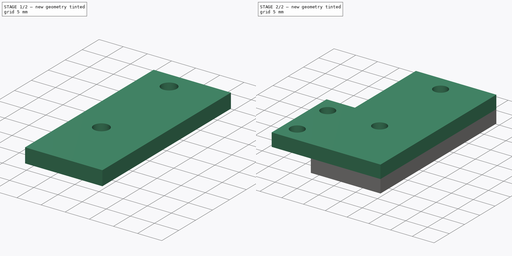
[diagram: build sequence overview — one tinted view per stage of 2, left to right]
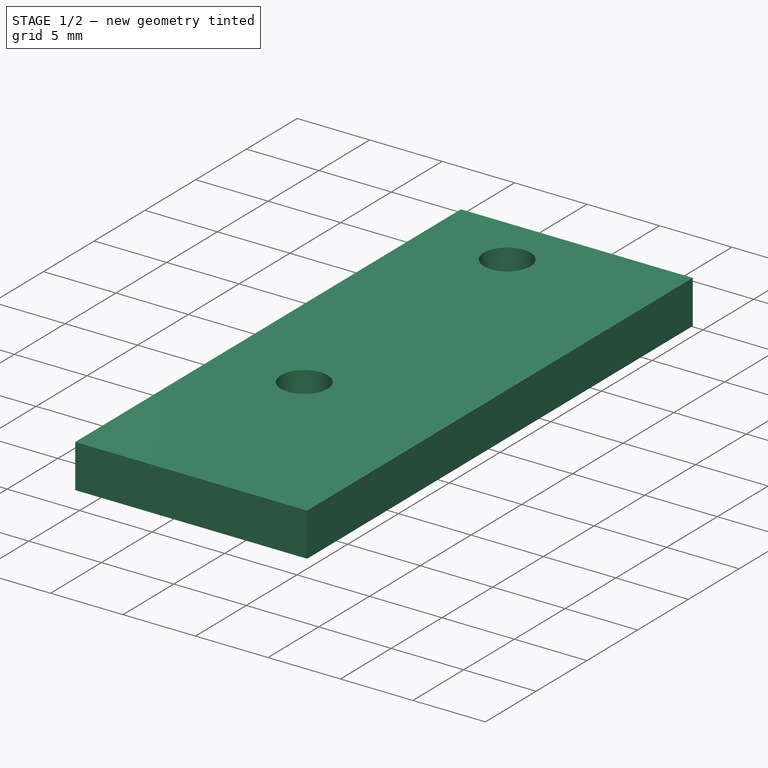
[diagram: stage 1 of 2 — iso view after this stage's code; geometry added in this stage tinted green]
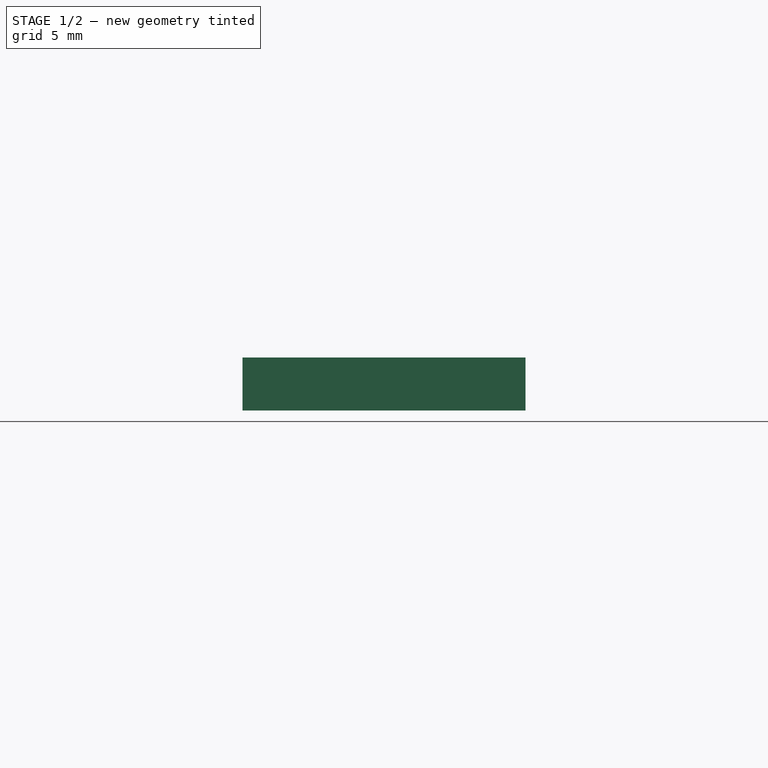
[diagram: stage 1 of 2 — front view after this stage's code; geometry added in this stage tinted green]
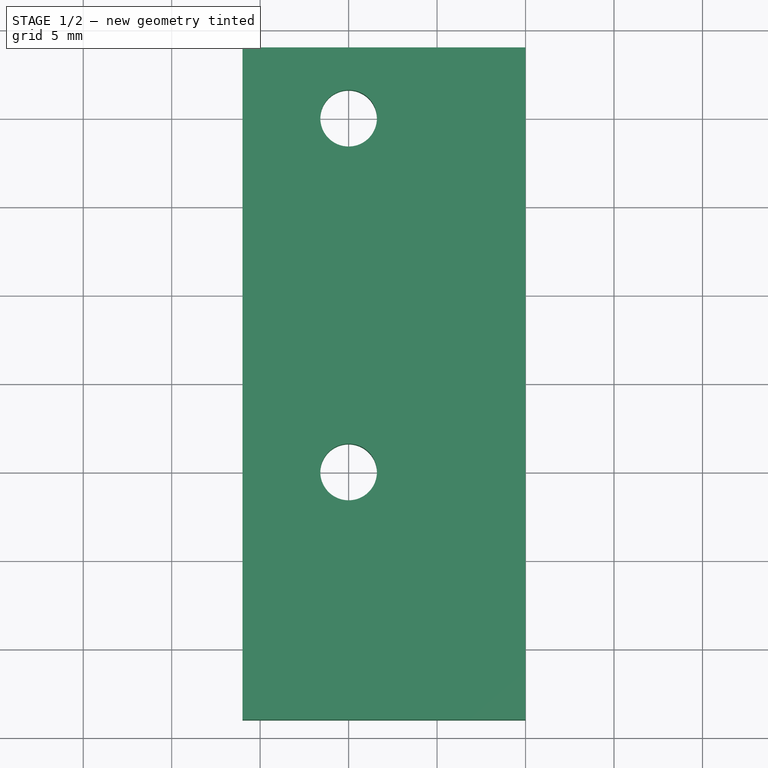
[diagram: stage 1 of 2 — top view after this stage's code; geometry added in this stage tinted green]
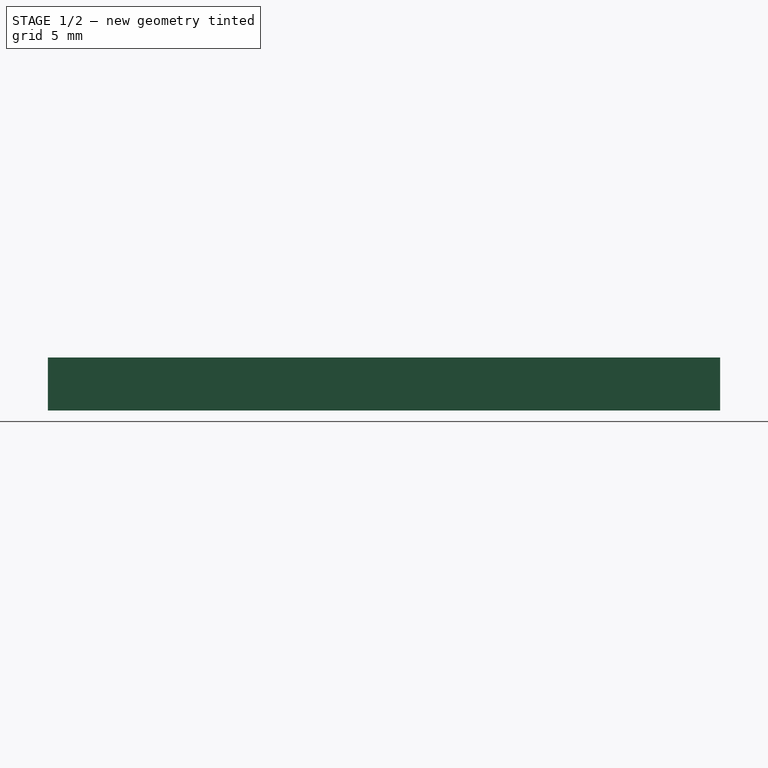
[diagram: stage 1 of 2 — right view after this stage's code; geometry added in this stage tinted green]
FCSTD DOCUMENT  (FreeCAD 0.19R24276 (Git))
Label: Endpoint_1_contact_holder
License: All rights reserved
LicenseURL: http://en.wikipedia.org/wiki/All_rights_reserved
objects: Sketcher::SketchObject×2, PartDesign::Pad×2, PartDesign::Body×1
note: 7 computed .brp shape members not serialized (recipe doc carries the construction recipe); baked Part::Feature solids carry a one-line shape summary decoded from their .brp

FEATURE [Sketcher::SketchObject] Sketch
  FullyConstrained = false
  MapMode = 5
  Support = -> [XY_Plane]
  sketch-geometry (24):
    g0: Circle CenterX=0 CenterY=0 CenterZ=0 NormalX=0 NormalY=0 NormalZ=1 AngleXU=0 Radius=1.6
    g1: Circle CenterX=0 CenterY=20 CenterZ=0 NormalX=0 NormalY=0 NormalZ=1 AngleXU=0 Radius=1.6
    g2: LineSegment StartX=-6 StartY=24 StartZ=0 EndX=13.757 EndY=24 EndZ=0
    g3: LineSegment StartX=13.757 StartY=24 StartZ=0 EndX=13.757 EndY=-5 EndZ=0
    g4: LineSegment StartX=13.757 StartY=-5 StartZ=0 EndX=-6 EndY=-5 EndZ=0
    g5: LineSegment StartX=-6 StartY=-5 StartZ=0 EndX=-6 EndY=24 EndZ=0
    g6: LineSegment StartX=0 StartY=10 StartZ=0 EndX=-19.9171 EndY=10 EndZ=0
    g7: LineSegment StartX=-78.7803 StartY=16 StartZ=0 EndX=38.9461 EndY=16 EndZ=0
    g8: LineSegment StartX=38.9461 StartY=16 StartZ=0 EndX=38.9461 EndY=4 EndZ=0
    g9: LineSegment StartX=38.9461 StartY=4 StartZ=0 EndX=-78.7803 EndY=4 EndZ=0
    g10: LineSegment StartX=-78.7803 StartY=4 StartZ=0 EndX=-78.7803 EndY=16 EndZ=0
    g11: LineSegment StartX=-54.5167 StartY=-14 StartZ=0 EndX=-88.5167 EndY=-14 EndZ=0
    g12: LineSegment StartX=-88.5167 StartY=-14 StartZ=0 EndX=-88.5167 EndY=4 EndZ=0
    g13: LineSegment StartX=-88.5167 StartY=4 StartZ=0 EndX=-54.5167 EndY=4 EndZ=0
    g14: LineSegment StartX=-54.5167 StartY=4 StartZ=0 EndX=-54.5167 EndY=-14 EndZ=0
    g15: LineSegment StartX=10 StartY=-14 StartZ=0 EndX=-33.2645 EndY=-14 EndZ=0
    g16: LineSegment StartX=-33.2645 StartY=-14 StartZ=0 EndX=-33.2645 EndY=24 EndZ=0
    g17: LineSegment StartX=-33.2645 StartY=24 StartZ=0 EndX=10 EndY=24 EndZ=0
    g18: LineSegment StartX=10 StartY=24 StartZ=0 EndX=10 EndY=-14 EndZ=0
    g19: LineSegment StartX=-26.3699 StartY=24 StartZ=0 EndX=-26.3699 EndY=-14 EndZ=0
    g20: LineSegment StartX=-6 StartY=24 StartZ=0 EndX=10 EndY=24 EndZ=0
    g21: LineSegment StartX=10 StartY=24 StartZ=0 EndX=10 EndY=-14 EndZ=0
    g22: LineSegment StartX=10 StartY=-14 StartZ=0 EndX=-6 EndY=-14 EndZ=0
    g23: LineSegment StartX=-6 StartY=-14 StartZ=0 EndX=-6 EndY=24 EndZ=0
  constraints (63):
    c: Coincident(g0,g-1)
    c: PointOnObject(g1,g-2)
    c: DistanceY(g-1,g1) = 20
    c: Diameter(g1) = 3.2
    c: Equal(g0,g1)
    c: Coincident(g2,g3)
    c: Coincident(g3,g4)
    c: Coincident(g4,g5)
    c: Coincident(g5,g2)
    c: Horizontal(g2)
    c: Horizontal(g4)
    c: Vertical(g3)
    c: Vertical(g5)
    c: DistanceY(g3,g-1) = 5
    c: DistanceY(g1,g2) = 4
    c: Horizontal(g6)
    c: Symmetric(g1,g-1,g6)
    c: Coincident(g7,g8)
    c: Coincident(g8,g9)
    c: Coincident(g9,g10)
    c: Coincident(g10,g7)
    c: Horizontal(g7)
    c: Horizontal(g9)
    c: Vertical(g8)
    c: Vertical(g10)
    c: Symmetric(g7,g8,g6)
    c: DistanceY(g10,g10) = 12
    c: Coincident(g11,g12)
    c: Coincident(g12,g13)
    c: Coincident(g13,g14)
    c: Coincident(g14,g11)
    c: Horizontal(g11)
    c: Horizontal(g13)
    c: Vertical(g12)
    c: Vertical(g14)
    c: DistanceY(g12,g9) = 0
    c: DistanceY(g12,g12) = 18
    c: DistanceX(g11,g11) = 34
    c: Coincident(g15,g16)
    c: Coincident(g16,g17)
    c: Coincident(g17,g18)
    c: Coincident(g18,g15)
    c: Horizontal(g15)
    c: Horizontal(g17)
    c: Vertical(g16)
    c: Vertical(g18)
    c: DistanceY(g15,g13) = 18
    c: DistanceY(g2,g17) = 0
    c: DistanceX(g1,g17) = 10
    c: Vertical(g19)
    c: PointOnObject(g19,g15)
    c: PointOnObject(g19,g17)
    c: DistanceX(g4,g-1) = 6
    c: Coincident(g20,g21)
    c: Coincident(g21,g22)
    c: Coincident(g22,g23)
    c: Coincident(g23,g20)
    c: Horizontal(g20)
    c: Horizontal(g22)
    c: Vertical(g21)
    c: Vertical(g23)
    c: Coincident(g20,g2)
    c: Coincident(g21,g15)
FEATURE [Sketcher::SketchObject] Sketch002
  FullyConstrained = false
  MapMode = 5
  Placement = pos=(0,0,3) rot=(0,0,1;0rad)
  sketch-geometry (11):
    g0: LineSegment StartX=-15 StartY=-14 StartZ=0 EndX=-15 EndY=4 EndZ=0
    g1: LineSegment StartX=10 StartY=24 StartZ=0 EndX=10 EndY=-14 EndZ=0
    g2: LineSegment StartX=10 StartY=-14 StartZ=0 EndX=-15 EndY=-14 EndZ=0
    g3: Circle CenterX=0 CenterY=20 CenterZ=0 NormalX=0 NormalY=0 NormalZ=1 AngleXU=0 Radius=1.6
    g4: Circle CenterX=0 CenterY=0 CenterZ=0 NormalX=0 NormalY=0 NormalZ=1 AngleXU=0 Radius=1.6
    g5: LineSegment StartX=-11.9176 StartY=4 StartZ=0 EndX=-11.9176 EndY=-14 EndZ=0
    g6: Circle CenterX=-11.9176 CenterY=-3e-16 CenterZ=0 NormalX=0 NormalY=0 NormalZ=1 AngleXU=0 Radius=1.6
    g7: Circle CenterX=-11.9176 CenterY=-10 CenterZ=0 NormalX=0 NormalY=0 NormalZ=1 AngleXU=0 Radius=1.6
    g8: LineSegment StartX=-15 StartY=4 StartZ=0 EndX=-8.47726 EndY=4 EndZ=0
    g9: LineSegment StartX=-8.47726 StartY=4 StartZ=0 EndX=-8.47726 EndY=24 EndZ=0
    g10: LineSegment StartX=-8.47726 StartY=24 StartZ=0 EndX=10 EndY=24 EndZ=0
  constraints (29):
    c: Vertical(g0)
    c: DistanceX(g0,g-1) = 15
    c: Coincident(g1,g10)
    c: Vertical(g1)
    c: Coincident(g2,g1)
    c: Coincident(g2,g0)
    c: Horizontal(g2)
    c: DistanceY(g1,g1) = 38
    c: PointOnObject(g3,g-2)
    c: Coincident(g4,g-1)
    c: Diameter(g4) = 3.2
    c: DistanceY(g4,g3) = 20
    c: DistanceY(g0,g4) = 14
    c: Vertical(g5)
    c: PointOnObject(g5,g2)
    c: PointOnObject(g6,g5)
    c: PointOnObject(g7,g5)
    c: Diameter(g6) = 3.2
    c: Diameter(g7) = 3.2
    c: DistanceY(g0,g7) = 4
    c: Horizontal(g8)
    c: Vertical(g9)
    c: Coincident(g8,g9)
    c: DistanceY(g0,g8) = 18
    c: Coincident(g10,g9)
    c: Coincident(g0,g8)
    c: PointOnObject(g5,g8)
    c: DistanceX(g0,g1) = 25
    c: DistanceY(g6,g0) = 4
FEATURE [PartDesign::Pad] Pad
  Direction = (1,1,1)
  Length = 3
  Length2 = 100
  Profile = -> Sketch
  Type = 0
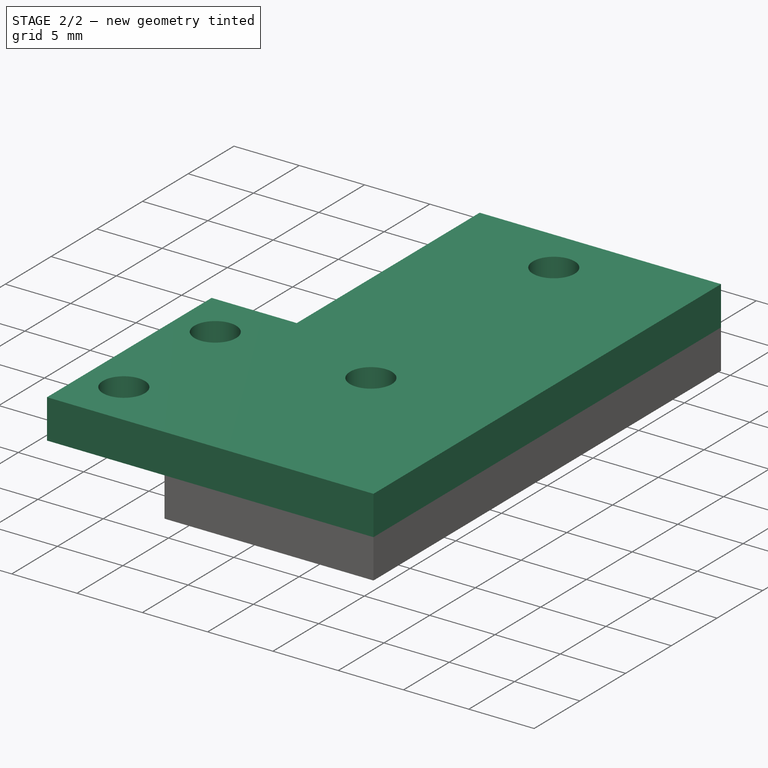
[diagram: stage 2 of 2 — iso view after this stage's code; geometry added in this stage tinted green]
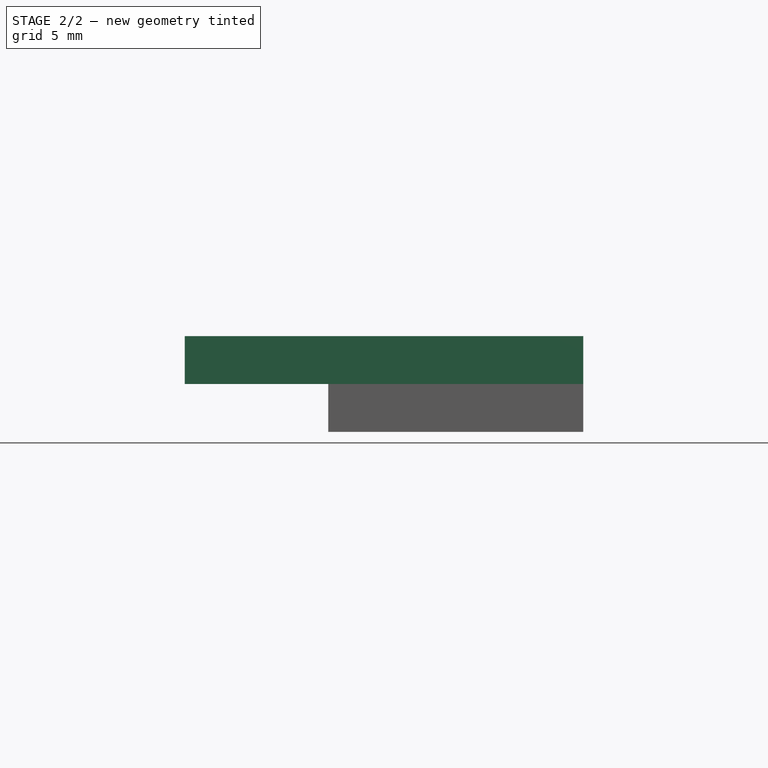
[diagram: stage 2 of 2 — front view after this stage's code; geometry added in this stage tinted green]
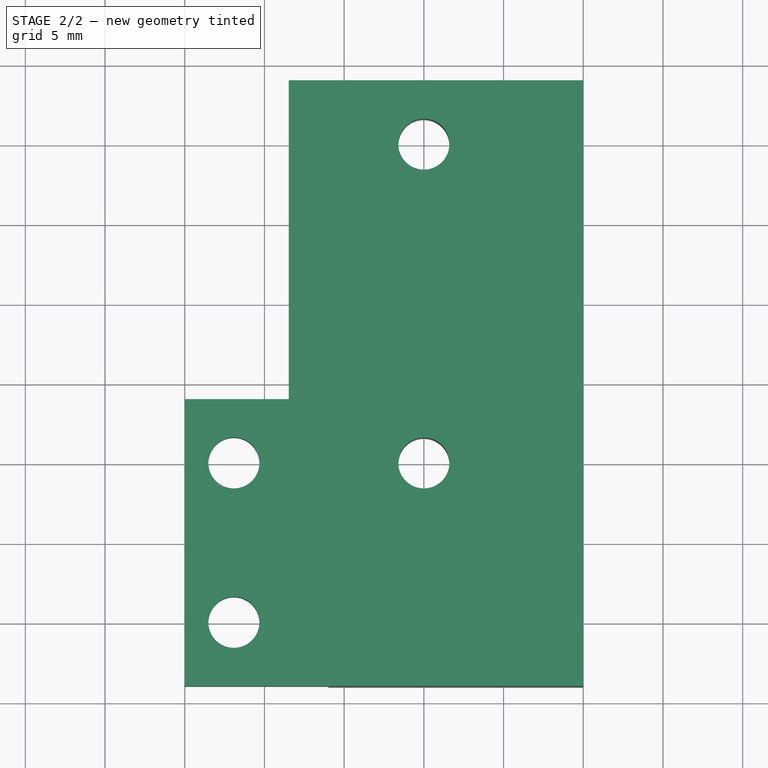
[diagram: stage 2 of 2 — top view after this stage's code; geometry added in this stage tinted green]
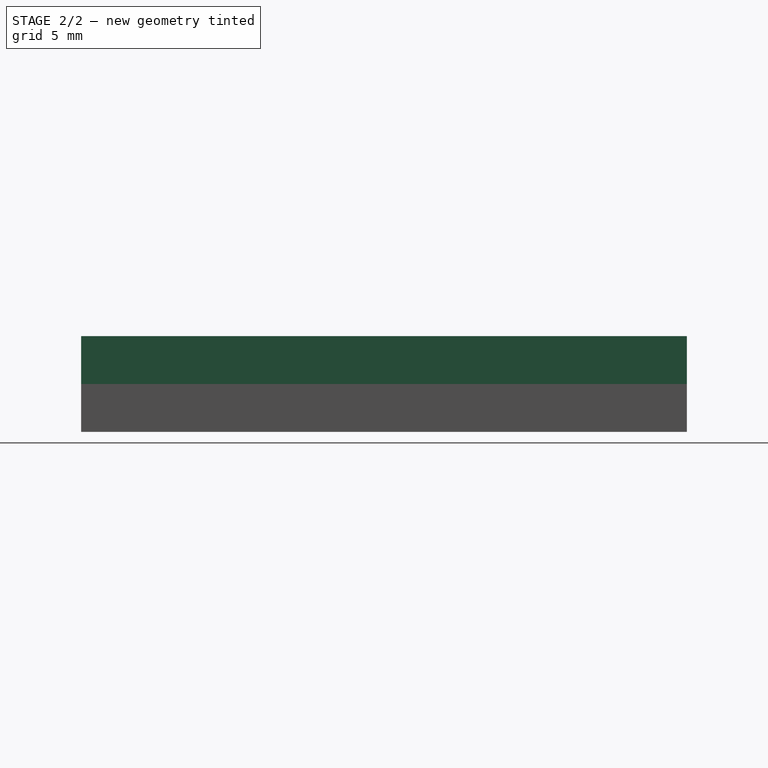
[diagram: stage 2 of 2 — right view after this stage's code; geometry added in this stage tinted green]
FEATURE [PartDesign::Pad] Pad001
  BaseFeature = -> Pad
  Direction = (1,1,1)
  Length = 3
  Length2 = 100
  Profile = -> Sketch002
  Type = 0
FEATURE [PartDesign::Body] Body
  Group = -> [Sketch,Sketch002,Pad,Pad001]
  Origin = -> Origin
  Tip = -> Pad001
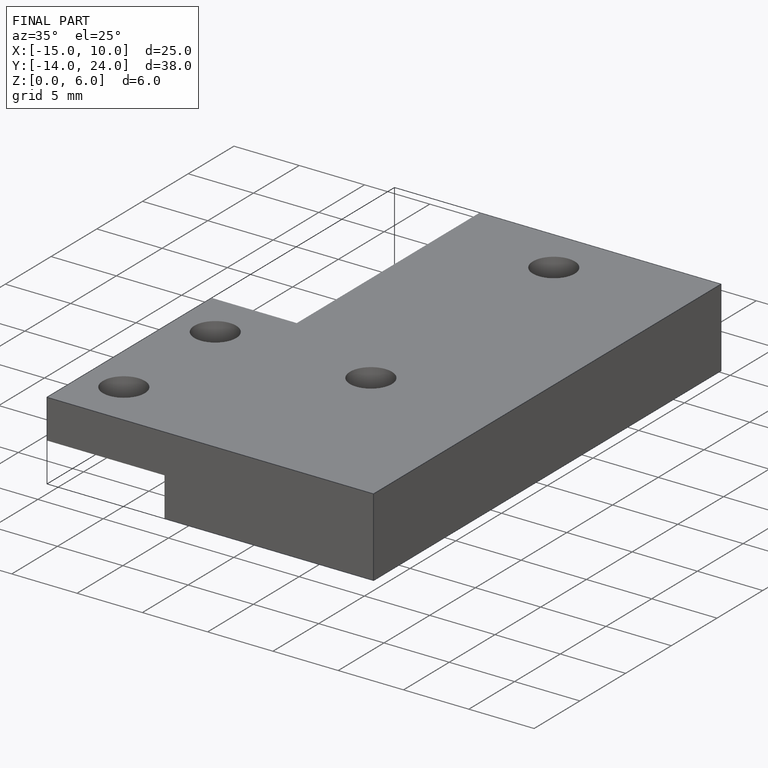
[diagram: finished part — iso view with bounding-box wireframe]
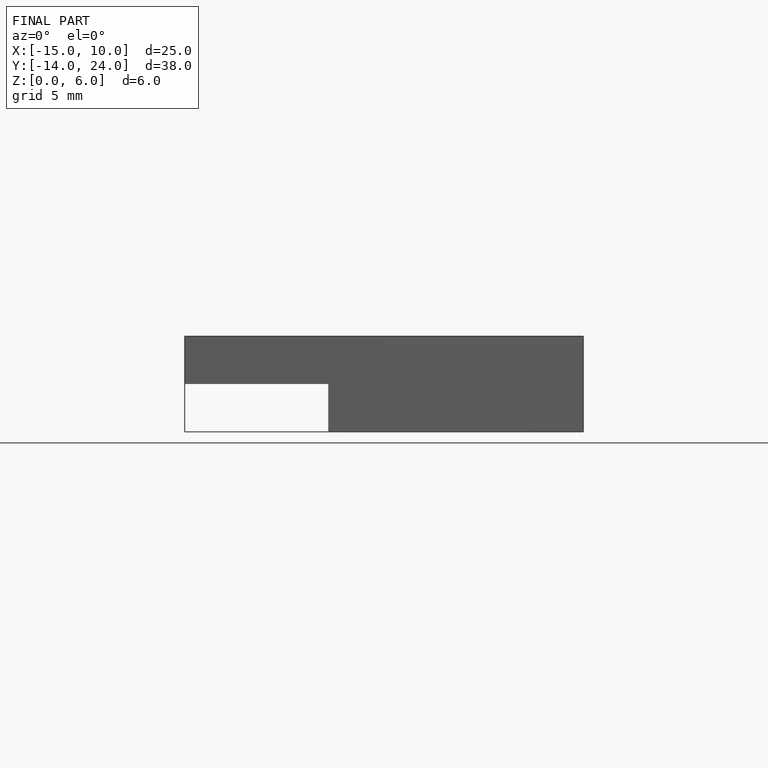
[diagram: finished part — front view with bounding-box wireframe]
